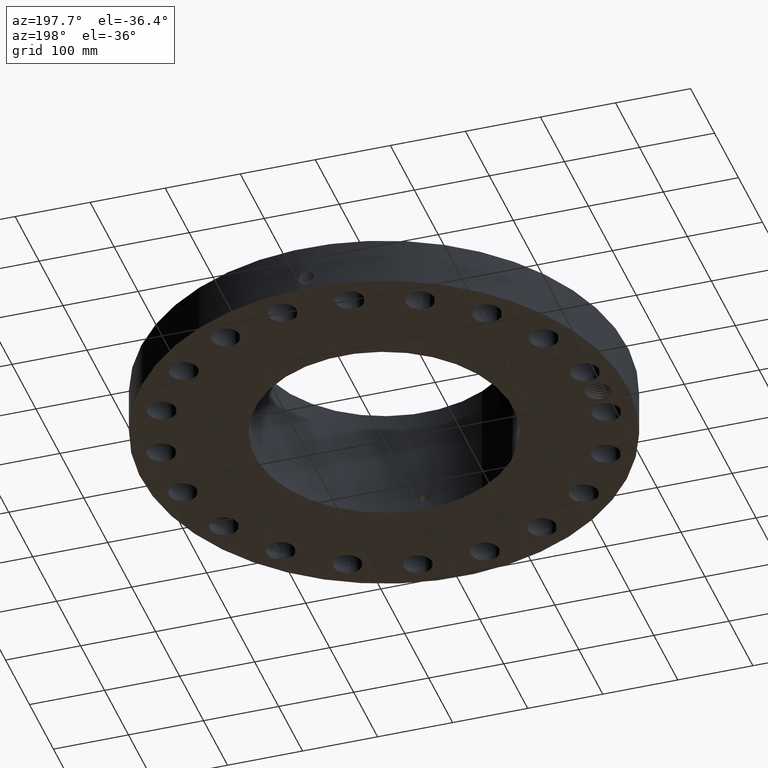
[diagram: clean part render]
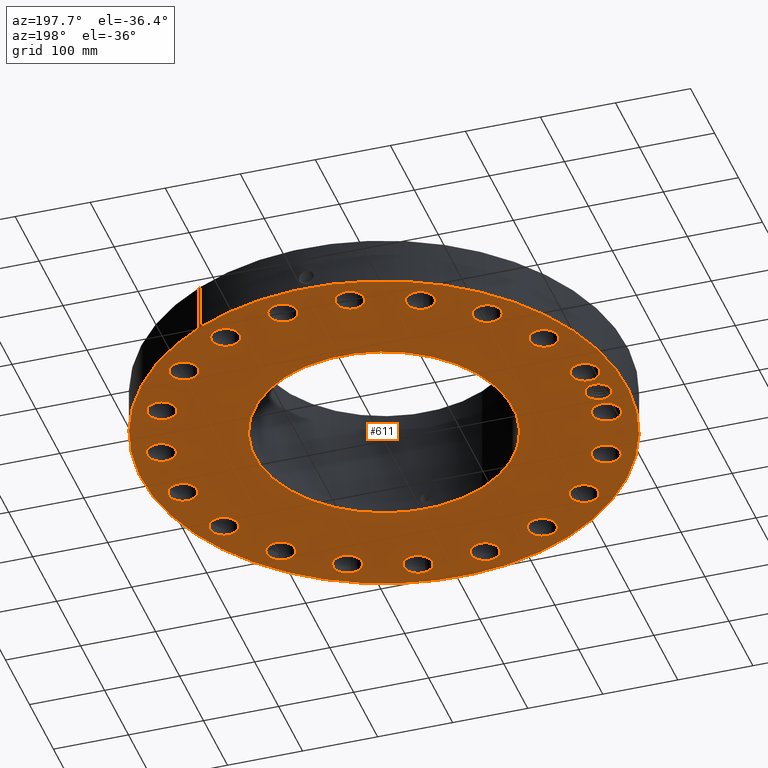
[diagram: same view with one face highlighted and labeled with its STEP entity id]
A machine part, auxiliary view. The second image highlights one B-rep face of the part: STEP entity #611.
In plain terms, the highlighted planar face has unit normal (0, 0, -1).
Its self-contained STEP definition (entity closure, byte-faithful):
#42=AXIS2_PLACEMENT_3D('Circle Axis2P3D',#40,#41,$) ;
#165=AXIS2_PLACEMENT_3D('Plane Axis2P3D',#162,#163,#164) ;
#169=AXIS2_PLACEMENT_3D('Circle Axis2P3D',#167,#168,$) ;
#178=AXIS2_PLACEMENT_3D('Circle Axis2P3D',#176,#177,$) ;
#187=AXIS2_PLACEMENT_3D('Circle Axis2P3D',#185,#186,$) ;
#235=AXIS2_PLACEMENT_3D('Circle Axis2P3D',#233,#234,$) ;
#244=AXIS2_PLACEMENT_3D('Circle Axis2P3D',#242,#243,$) ;
#253=AXIS2_PLACEMENT_3D('Circle Axis2P3D',#251,#252,$) ;
#262=AXIS2_PLACEMENT_3D('Circle Axis2P3D',#260,#261,$) ;
#271=AXIS2_PLACEMENT_3D('Circle Axis2P3D',#269,#270,$) ;
#280=AXIS2_PLACEMENT_3D('Circle Axis2P3D',#278,#279,$) ;
#289=AXIS2_PLACEMENT_3D('Circle Axis2P3D',#287,#288,$) ;
#298=AXIS2_PLACEMENT_3D('Circle Axis2P3D',#296,#297,$) ;
#307=AXIS2_PLACEMENT_3D('Circle Axis2P3D',#305,#306,$) ;
#316=AXIS2_PLACEMENT_3D('Circle Axis2P3D',#314,#315,$) ;
#325=AXIS2_PLACEMENT_3D('Circle Axis2P3D',#323,#324,$) ;
#334=AXIS2_PLACEMENT_3D('Circle Axis2P3D',#332,#333,$) ;
#343=AXIS2_PLACEMENT_3D('Circle Axis2P3D',#341,#342,$) ;
#352=AXIS2_PLACEMENT_3D('Circle Axis2P3D',#350,#351,$) ;
#361=AXIS2_PLACEMENT_3D('Circle Axis2P3D',#359,#360,$) ;
#370=AXIS2_PLACEMENT_3D('Circle Axis2P3D',#368,#369,$) ;
#379=AXIS2_PLACEMENT_3D('Circle Axis2P3D',#377,#378,$) ;
#388=AXIS2_PLACEMENT_3D('Circle Axis2P3D',#386,#387,$) ;
#397=AXIS2_PLACEMENT_3D('Circle Axis2P3D',#395,#396,$) ;
#406=AXIS2_PLACEMENT_3D('Circle Axis2P3D',#404,#405,$) ;
#415=AXIS2_PLACEMENT_3D('Circle Axis2P3D',#413,#414,$) ;
#424=AXIS2_PLACEMENT_3D('Circle Axis2P3D',#422,#423,$) ;
#433=AXIS2_PLACEMENT_3D('Circle Axis2P3D',#431,#432,$) ;
#442=AXIS2_PLACEMENT_3D('Circle Axis2P3D',#440,#441,$) ;
#451=AXIS2_PLACEMENT_3D('Circle Axis2P3D',#449,#450,$) ;
#460=AXIS2_PLACEMENT_3D('Circle Axis2P3D',#458,#459,$) ;
#469=AXIS2_PLACEMENT_3D('Circle Axis2P3D',#467,#468,$) ;
#478=AXIS2_PLACEMENT_3D('Circle Axis2P3D',#476,#477,$) ;
#487=AXIS2_PLACEMENT_3D('Circle Axis2P3D',#485,#486,$) ;
#496=AXIS2_PLACEMENT_3D('Circle Axis2P3D',#494,#495,$) ;
#505=AXIS2_PLACEMENT_3D('Circle Axis2P3D',#503,#504,$) ;
#514=AXIS2_PLACEMENT_3D('Circle Axis2P3D',#512,#513,$) ;
#523=AXIS2_PLACEMENT_3D('Circle Axis2P3D',#521,#522,$) ;
#532=AXIS2_PLACEMENT_3D('Circle Axis2P3D',#530,#531,$) ;
#541=AXIS2_PLACEMENT_3D('Circle Axis2P3D',#539,#540,$) ;
#550=AXIS2_PLACEMENT_3D('Circle Axis2P3D',#548,#549,$) ;
#559=AXIS2_PLACEMENT_3D('Circle Axis2P3D',#557,#558,$) ;
#568=AXIS2_PLACEMENT_3D('Circle Axis2P3D',#566,#567,$) ;
#577=AXIS2_PLACEMENT_3D('Circle Axis2P3D',#575,#576,$) ;
#586=AXIS2_PLACEMENT_3D('Circle Axis2P3D',#584,#585,$) ;
#595=AXIS2_PLACEMENT_3D('Circle Axis2P3D',#593,#594,$) ;
#604=AXIS2_PLACEMENT_3D('Circle Axis2P3D',#602,#603,$) ;
#40=CARTESIAN_POINT('Axis2P3D Location',(0.,0.,0.250000000001)) ;
#44=CARTESIAN_POINT('Vertex',(-6.11267561723,-11.1891776641,0.250000000001)) ;
#46=CARTESIAN_POINT('Vertex',(6.11267561723,11.1891776641,0.250000000001)) ;
#162=CARTESIAN_POINT('Axis2P3D Location',(0.,6.78100000003,0.250000000001)) ;
#167=CARTESIAN_POINT('Axis2P3D Location',(0.,0.,0.250000000001)) ;
#176=CARTESIAN_POINT('Axis2P3D Location',(-11.25,1.1189649382E-015,0.250000000001)) ;
#180=CARTESIAN_POINT('Vertex',(-11.8374318274,0.320915469904,0.250000000001)) ;
#182=CARTESIAN_POINT('Vertex',(-10.7473098011,0.442001645356,0.250000000001)) ;
#185=CARTESIAN_POINT('Axis2P3D Location',(-11.25,1.1189649382E-015,0.250000000001)) ;
#189=CARTESIAN_POINT('Vertex',(-10.745727607,-0.44019568855,0.250000000001)) ;
#193=CARTESIAN_POINT('Control Point',(-10.562547572,-2.07439722149E-006,0.250000000001)) ;
#194=CARTESIAN_POINT('Control Point',(-10.5649123368,-0.0645126418979,0.250000000001)) ;
#195=CARTESIAN_POINT('Control Point',(-10.5748495546,-0.12861527297,0.250000000001)) ;
#196=CARTESIAN_POINT('Control Point',(-10.5922883491,-0.191090685378,0.250000000001)) ;
#197=CARTESIAN_POINT('Control Point',(-10.6296657089,-0.281822187559,0.250000000001)) ;
#198=CARTESIAN_POINT('Control Point',(-10.6821488484,-0.363706894198,0.250000000001)) ;
#199=CARTESIAN_POINT('Control Point',(-10.7018002172,-0.390557436403,0.250000000001)) ;
#200=CARTESIAN_POINT('Control Point',(-10.7230326182,-0.416093542099,0.250000000001)) ;
#201=CARTESIAN_POINT('Control Point',(-10.745727607,-0.44019568855,0.250000000001)) ;
#202=CARTESIAN_POINT('Vertex',(-10.562547572,-2.07439722065E-006,0.250000000001)) ;
#206=CARTESIAN_POINT('Control Point',(-10.5625012214,0.00129588031295,0.250000000001)) ;
#207=CARTESIAN_POINT('Control Point',(-10.5625102463,0.00103627649472,0.250000000001)) ;
#208=CARTESIAN_POINT('Control Point',(-10.5625193938,0.000776679046875,0.250000000001)) ;
#209=CARTESIAN_POINT('Control Point',(-10.5625286639,0.000517087944345,0.250000000001)) ;
#210=CARTESIAN_POINT('Control Point',(-10.5625380567,0.000257503471332,0.250000000001)) ;
#211=CARTESIAN_POINT('Control Point',(-10.562547572,-2.07439722037E-006,0.250000000001)) ;
#212=CARTESIAN_POINT('Vertex',(-10.5625012214,0.00129588031295,0.250000000001)) ;
#216=CARTESIAN_POINT('Control Point',(-10.5625012214,0.00129588031295,0.250000000001)) ;
#217=CARTESIAN_POINT('Control Point',(-10.5649866199,0.065786283921,0.250000000001)) ;
#218=CARTESIAN_POINT('Control Point',(-10.5750394386,0.129854614966,0.250000000001)) ;
#219=CARTESIAN_POINT('Control Point',(-10.5925968418,0.192305932305,0.250000000001)) ;
#220=CARTESIAN_POINT('Control Point',(-10.630231751,0.283182608226,0.250000000001)) ;
#221=CARTESIAN_POINT('Control Point',(-10.6830567402,0.365186565569,0.250000000001)) ;
#222=CARTESIAN_POINT('Control Point',(-10.7029124323,0.392165092699,0.250000000001)) ;
#223=CARTESIAN_POINT('Control Point',(-10.7243703034,0.417811230116,0.250000000001)) ;
#224=CARTESIAN_POINT('Control Point',(-10.7473098011,0.442001645356,0.250000000001)) ;
#233=CARTESIAN_POINT('Axis2P3D Location',(11.1114938317,-1.75988773171,0.250000000001)) ;
#237=CARTESIAN_POINT('Vertex',(11.7696807532,-2.11945688566,0.250000000001)) ;
#239=CARTESIAN_POINT('Vertex',(10.4533069103,-1.40031857776,0.250000000001)) ;
#242=CARTESIAN_POINT('Axis2P3D Location',(11.1114938317,-1.75988773171,0.250000000001)) ;
#251=CARTESIAN_POINT('Axis2P3D Location',(0.,0.,0.250000000001)) ;
#255=CARTESIAN_POINT('Vertex',(3.25098457729,5.9508873522,0.250000000001)) ;
#257=CARTESIAN_POINT('Vertex',(-3.25098457729,-5.9508873522,0.250000000001)) ;
#260=CARTESIAN_POINT('Axis2P3D Location',(0.,0.,0.250000000001)) ;
#269=CARTESIAN_POINT('Axis2P3D Location',(10.0238233972,-5.10739312209,0.250000000001)) ;
#273=CARTESIAN_POINT('Vertex',(9.50896341583,-4.56203159097,0.250000000001)) ;
#275=CARTESIAN_POINT('Vertex',(10.5386833785,-5.65275465321,0.250000000001)) ;
#278=CARTESIAN_POINT('Axis2P3D Location',(10.0238233972,-5.10739312209,0.250000000001)) ;
#287=CARTESIAN_POINT('Axis2P3D Location',(7.95495128838,-7.95495128838,0.250000000001)) ;
#291=CARTESIAN_POINT('Vertex',(7.63381632935,-7.27718116652,0.250000000001)) ;
#293=CARTESIAN_POINT('Vertex',(8.27608624741,-8.63272141025,0.250000000001)) ;
#296=CARTESIAN_POINT('Axis2P3D Location',(7.95495128838,-7.95495128838,0.250000000001)) ;
#305=CARTESIAN_POINT('Axis2P3D Location',(5.10739312209,-10.0238233972,0.250000000001)) ;
#309=CARTESIAN_POINT('Vertex',(5.01141811263,-9.27998954638,0.250000000001)) ;
#311=CARTESIAN_POINT('Vertex',(5.20336813155,-10.7676572479,0.250000000001)) ;
#314=CARTESIAN_POINT('Axis2P3D Location',(5.10739312209,-10.0238233972,0.250000000001)) ;
#323=CARTESIAN_POINT('Axis2P3D Location',(1.75988773171,-11.1114938317,0.250000000001)) ;
#327=CARTESIAN_POINT('Vertex',(1.89846737444,-10.374407892,0.250000000001)) ;
#329=CARTESIAN_POINT('Vertex',(1.62130808898,-11.8485797715,0.250000000001)) ;
#332=CARTESIAN_POINT('Axis2P3D Location',(1.75988773171,-11.1114938317,0.250000000001)) ;
#341=CARTESIAN_POINT('Axis2P3D Location',(-1.75988773171,-11.1114938317,0.250000000001)) ;
#345=CARTESIAN_POINT('Vertex',(-1.40031857776,-10.4533069103,0.250000000001)) ;
#347=CARTESIAN_POINT('Vertex',(-2.11945688566,-11.7696807532,0.250000000001)) ;
#350=CARTESIAN_POINT('Axis2P3D Location',(-1.75988773171,-11.1114938317,0.250000000001)) ;
#359=CARTESIAN_POINT('Axis2P3D Location',(-5.10739312209,-10.0238233972,0.250000000001)) ;
#363=CARTESIAN_POINT('Vertex',(-4.56203159097,-9.50896341583,0.250000000001)) ;
#365=CARTESIAN_POINT('Vertex',(-5.65275465321,-10.5386833785,0.250000000001)) ;
#368=CARTESIAN_POINT('Axis2P3D Location',(-5.10739312209,-10.0238233972,0.250000000001)) ;
#377=CARTESIAN_POINT('Axis2P3D Location',(-7.95495128838,-7.95495128838,0.250000000001)) ;
#381=CARTESIAN_POINT('Vertex',(-7.27718116652,-7.63381632935,0.250000000001)) ;
#383=CARTESIAN_POINT('Vertex',(-8.63272141025,-8.27608624741,0.250000000001)) ;
#386=CARTESIAN_POINT('Axis2P3D Location',(-7.95495128838,-7.95495128838,0.250000000001)) ;
#395=CARTESIAN_POINT('Axis2P3D Location',(-10.0238233972,-5.10739312209,0.250000000001)) ;
#399=CARTESIAN_POINT('Vertex',(-9.27998954638,-5.01141811263,0.250000000001)) ;
#401=CARTESIAN_POINT('Vertex',(-10.7676572479,-5.20336813155,0.250000000001)) ;
#404=CARTESIAN_POINT('Axis2P3D Location',(-10.0238233972,-5.10739312209,0.250000000001)) ;
#413=CARTESIAN_POINT('Axis2P3D Location',(-11.1114938317,-1.75988773171,0.250000000001)) ;
#417=CARTESIAN_POINT('Vertex',(-10.374407892,-1.89846737444,0.250000000001)) ;
#419=CARTESIAN_POINT('Vertex',(-11.8485797715,-1.62130808898,0.250000000001)) ;
#422=CARTESIAN_POINT('Axis2P3D Location',(-11.1114938317,-1.75988773171,0.250000000001)) ;
#431=CARTESIAN_POINT('Axis2P3D Location',(-11.1114938317,1.75988773171,0.250000000001)) ;
#435=CARTESIAN_POINT('Vertex',(-10.4533069103,1.40031857776,0.250000000001)) ;
#437=CARTESIAN_POINT('Vertex',(-11.7696807532,2.11945688566,0.250000000001)) ;
#440=CARTESIAN_POINT('Axis2P3D Location',(-11.1114938317,1.75988773171,0.250000000001)) ;
#449=CARTESIAN_POINT('Axis2P3D Location',(-10.0238233972,5.10739312209,0.250000000001)) ;
#453=CARTESIAN_POINT('Vertex',(-9.50896341583,4.56203159097,0.250000000001)) ;
#455=CARTESIAN_POINT('Vertex',(-10.5386833785,5.65275465321,0.250000000001)) ;
#458=CARTESIAN_POINT('Axis2P3D Location',(-10.0238233972,5.10739312209,0.250000000001)) ;
#467=CARTESIAN_POINT('Axis2P3D Location',(-7.95495128838,7.95495128838,0.250000000001)) ;
#471=CARTESIAN_POINT('Vertex',(-7.63381632935,7.27718116652,0.250000000001)) ;
#473=CARTESIAN_POINT('Vertex',(-8.27608624741,8.63272141025,0.250000000001)) ;
#476=CARTESIAN_POINT('Axis2P3D Location',(-7.95495128838,7.95495128838,0.250000000001)) ;
#485=CARTESIAN_POINT('Axis2P3D Location',(-5.10739312209,10.0238233972,0.250000000001)) ;
#489=CARTESIAN_POINT('Vertex',(-5.01141811263,9.27998954638,0.250000000001)) ;
#491=CARTESIAN_POINT('Vertex',(-5.20336813155,10.7676572479,0.250000000001)) ;
#494=CARTESIAN_POINT('Axis2P3D Location',(-5.10739312209,10.0238233972,0.250000000001)) ;
#503=CARTESIAN_POINT('Axis2P3D Location',(-1.75988773171,11.1114938317,0.250000000001)) ;
#507=CARTESIAN_POINT('Vertex',(-1.89846737444,10.374407892,0.250000000001)) ;
#509=CARTESIAN_POINT('Vertex',(-1.62130808898,11.8485797715,0.250000000001)) ;
#512=CARTESIAN_POINT('Axis2P3D Location',(-1.75988773171,11.1114938317,0.250000000001)) ;
#521=CARTESIAN_POINT('Axis2P3D Location',(1.75988773171,11.1114938317,0.250000000001)) ;
#525=CARTESIAN_POINT('Vertex',(1.40031857776,10.4533069103,0.250000000001)) ;
#527=CARTESIAN_POINT('Vertex',(2.11945688566,11.7696807532,0.250000000001)) ;
#530=CARTESIAN_POINT('Axis2P3D Location',(1.75988773171,11.1114938317,0.250000000001)) ;
#539=CARTESIAN_POINT('Axis2P3D Location',(5.10739312209,10.0238233972,0.250000000001)) ;
#543=CARTESIAN_POINT('Vertex',(4.56203159097,9.50896341583,0.250000000001)) ;
#545=CARTESIAN_POINT('Vertex',(5.65275465321,10.5386833785,0.250000000001)) ;
#548=CARTESIAN_POINT('Axis2P3D Location',(5.10739312209,10.0238233972,0.250000000001)) ;
#557=CARTESIAN_POINT('Axis2P3D Location',(7.95495128838,7.95495128838,0.250000000001)) ;
#561=CARTESIAN_POINT('Vertex',(7.27718116652,7.63381632935,0.250000000001)) ;
#563=CARTESIAN_POINT('Vertex',(8.63272141025,8.27608624741,0.250000000001)) ;
#566=CARTESIAN_POINT('Axis2P3D Location',(7.95495128838,7.95495128838,0.250000000001)) ;
#575=CARTESIAN_POINT('Axis2P3D Location',(10.0238233972,5.10739312209,0.250000000001)) ;
#579=CARTESIAN_POINT('Vertex',(9.27998954638,5.01141811263,0.250000000001)) ;
#581=CARTESIAN_POINT('Vertex',(10.7676572479,5.20336813155,0.250000000001)) ;
#584=CARTESIAN_POINT('Axis2P3D Location',(10.0238233972,5.10739312209,0.250000000001)) ;
#593=CARTESIAN_POINT('Axis2P3D Location',(11.1114938317,1.75988773171,0.250000000001)) ;
#597=CARTESIAN_POINT('Vertex',(10.374407892,1.89846737444,0.250000000001)) ;
#599=CARTESIAN_POINT('Vertex',(11.8485797715,1.62130808898,0.250000000001)) ;
#602=CARTESIAN_POINT('Axis2P3D Location',(11.1114938317,1.75988773171,0.250000000001)) ;
#41=DIRECTION('Axis2P3D Direction',(0.,0.,-0.0393700787402)) ;
#163=DIRECTION('Axis2P3D Direction',(0.,0.,-0.0393700787402)) ;
#164=DIRECTION('Axis2P3D XDirection',(0.0393700787402,0.,0.)) ;
#168=DIRECTION('Axis2P3D Direction',(0.,0.,-0.0393700787402)) ;
#177=DIRECTION('Axis2P3D Direction',(0.,0.,-0.0393700787402)) ;
#186=DIRECTION('Axis2P3D Direction',(0.,0.,-0.0393700787402)) ;
#234=DIRECTION('Axis2P3D Direction',(0.,0.,-0.0393700787402)) ;
#243=DIRECTION('Axis2P3D Direction',(0.,0.,-0.0393700787402)) ;
#252=DIRECTION('Axis2P3D Direction',(0.,0.,-0.0393700787402)) ;
#261=DIRECTION('Axis2P3D Direction',(0.,0.,-0.0393700787402)) ;
#270=DIRECTION('Axis2P3D Direction',(0.,0.,-0.0393700787402)) ;
#279=DIRECTION('Axis2P3D Direction',(0.,0.,-0.0393700787402)) ;
#288=DIRECTION('Axis2P3D Direction',(0.,0.,-0.0393700787402)) ;
#297=DIRECTION('Axis2P3D Direction',(0.,0.,-0.0393700787402)) ;
#306=DIRECTION('Axis2P3D Direction',(0.,0.,-0.0393700787402)) ;
#315=DIRECTION('Axis2P3D Direction',(0.,0.,-0.0393700787402)) ;
#324=DIRECTION('Axis2P3D Direction',(0.,0.,-0.0393700787402)) ;
#333=DIRECTION('Axis2P3D Direction',(0.,0.,-0.0393700787402)) ;
#342=DIRECTION('Axis2P3D Direction',(0.,0.,-0.0393700787402)) ;
#351=DIRECTION('Axis2P3D Direction',(0.,0.,-0.0393700787402)) ;
#360=DIRECTION('Axis2P3D Direction',(0.,0.,-0.0393700787402)) ;
#369=DIRECTION('Axis2P3D Direction',(0.,0.,-0.0393700787402)) ;
#378=DIRECTION('Axis2P3D Direction',(0.,0.,-0.0393700787402)) ;
#387=DIRECTION('Axis2P3D Direction',(0.,0.,-0.0393700787402)) ;
#396=DIRECTION('Axis2P3D Direction',(0.,0.,-0.0393700787402)) ;
#405=DIRECTION('Axis2P3D Direction',(0.,0.,-0.0393700787402)) ;
#414=DIRECTION('Axis2P3D Direction',(0.,0.,-0.0393700787402)) ;
#423=DIRECTION('Axis2P3D Direction',(0.,0.,-0.0393700787402)) ;
#432=DIRECTION('Axis2P3D Direction',(0.,0.,-0.0393700787402)) ;
#441=DIRECTION('Axis2P3D Direction',(0.,0.,-0.0393700787402)) ;
#450=DIRECTION('Axis2P3D Direction',(0.,0.,-0.0393700787402)) ;
#459=DIRECTION('Axis2P3D Direction',(0.,0.,-0.0393700787402)) ;
#468=DIRECTION('Axis2P3D Direction',(0.,0.,-0.0393700787402)) ;
#477=DIRECTION('Axis2P3D Direction',(0.,0.,-0.0393700787402)) ;
#486=DIRECTION('Axis2P3D Direction',(0.,0.,-0.0393700787402)) ;
#495=DIRECTION('Axis2P3D Direction',(0.,0.,-0.0393700787402)) ;
#504=DIRECTION('Axis2P3D Direction',(0.,0.,-0.0393700787402)) ;
#513=DIRECTION('Axis2P3D Direction',(0.,0.,-0.0393700787402)) ;
#522=DIRECTION('Axis2P3D Direction',(0.,0.,-0.0393700787402)) ;
#531=DIRECTION('Axis2P3D Direction',(0.,0.,-0.0393700787402)) ;
#540=DIRECTION('Axis2P3D Direction',(0.,0.,-0.0393700787402)) ;
#549=DIRECTION('Axis2P3D Direction',(0.,0.,-0.0393700787402)) ;
#558=DIRECTION('Axis2P3D Direction',(0.,0.,-0.0393700787402)) ;
#567=DIRECTION('Axis2P3D Direction',(0.,0.,-0.0393700787402)) ;
#576=DIRECTION('Axis2P3D Direction',(0.,0.,-0.0393700787402)) ;
#585=DIRECTION('Axis2P3D Direction',(0.,0.,-0.0393700787402)) ;
#594=DIRECTION('Axis2P3D Direction',(0.,0.,-0.0393700787402)) ;
#603=DIRECTION('Axis2P3D Direction',(0.,0.,-0.0393700787402)) ;
#173=ORIENTED_EDGE('',*,*,#48,.T.) ;
#174=ORIENTED_EDGE('',*,*,#171,.T.) ;
#227=ORIENTED_EDGE('',*,*,#184,.F.) ;
#228=ORIENTED_EDGE('',*,*,#191,.F.) ;
#229=ORIENTED_EDGE('',*,*,#204,.F.) ;
#230=ORIENTED_EDGE('',*,*,#214,.F.) ;
#231=ORIENTED_EDGE('',*,*,#225,.T.) ;
#248=ORIENTED_EDGE('',*,*,#241,.F.) ;
#249=ORIENTED_EDGE('',*,*,#246,.F.) ;
#266=ORIENTED_EDGE('',*,*,#259,.F.) ;
#267=ORIENTED_EDGE('',*,*,#264,.F.) ;
#284=ORIENTED_EDGE('',*,*,#277,.F.) ;
#285=ORIENTED_EDGE('',*,*,#282,.F.) ;
#302=ORIENTED_EDGE('',*,*,#295,.F.) ;
#303=ORIENTED_EDGE('',*,*,#300,.F.) ;
#320=ORIENTED_EDGE('',*,*,#313,.F.) ;
#321=ORIENTED_EDGE('',*,*,#318,.F.) ;
#338=ORIENTED_EDGE('',*,*,#331,.F.) ;
#339=ORIENTED_EDGE('',*,*,#336,.F.) ;
#356=ORIENTED_EDGE('',*,*,#349,.F.) ;
#357=ORIENTED_EDGE('',*,*,#354,.F.) ;
#374=ORIENTED_EDGE('',*,*,#367,.F.) ;
#375=ORIENTED_EDGE('',*,*,#372,.F.) ;
#392=ORIENTED_EDGE('',*,*,#385,.F.) ;
#393=ORIENTED_EDGE('',*,*,#390,.F.) ;
#410=ORIENTED_EDGE('',*,*,#403,.F.) ;
#411=ORIENTED_EDGE('',*,*,#408,.F.) ;
#428=ORIENTED_EDGE('',*,*,#421,.F.) ;
#429=ORIENTED_EDGE('',*,*,#426,.F.) ;
#446=ORIENTED_EDGE('',*,*,#439,.F.) ;
#447=ORIENTED_EDGE('',*,*,#444,.F.) ;
#464=ORIENTED_EDGE('',*,*,#457,.F.) ;
#465=ORIENTED_EDGE('',*,*,#462,.F.) ;
#482=ORIENTED_EDGE('',*,*,#475,.F.) ;
#483=ORIENTED_EDGE('',*,*,#480,.F.) ;
#500=ORIENTED_EDGE('',*,*,#493,.F.) ;
#501=ORIENTED_EDGE('',*,*,#498,.F.) ;
#518=ORIENTED_EDGE('',*,*,#511,.F.) ;
#519=ORIENTED_EDGE('',*,*,#516,.F.) ;
#536=ORIENTED_EDGE('',*,*,#529,.F.) ;
#537=ORIENTED_EDGE('',*,*,#534,.F.) ;
#554=ORIENTED_EDGE('',*,*,#547,.F.) ;
#555=ORIENTED_EDGE('',*,*,#552,.F.) ;
#572=ORIENTED_EDGE('',*,*,#565,.F.) ;
#573=ORIENTED_EDGE('',*,*,#570,.F.) ;
#590=ORIENTED_EDGE('',*,*,#583,.F.) ;
#591=ORIENTED_EDGE('',*,*,#588,.F.) ;
#608=ORIENTED_EDGE('',*,*,#601,.F.) ;
#609=ORIENTED_EDGE('',*,*,#606,.F.) ;
#232=FACE_BOUND('',#226,.T.) ;
#250=FACE_BOUND('',#247,.T.) ;
#268=FACE_BOUND('',#265,.T.) ;
#286=FACE_BOUND('',#283,.T.) ;
#304=FACE_BOUND('',#301,.T.) ;
#322=FACE_BOUND('',#319,.T.) ;
#340=FACE_BOUND('',#337,.T.) ;
#358=FACE_BOUND('',#355,.T.) ;
#376=FACE_BOUND('',#373,.T.) ;
#394=FACE_BOUND('',#391,.T.) ;
#412=FACE_BOUND('',#409,.T.) ;
#430=FACE_BOUND('',#427,.T.) ;
#448=FACE_BOUND('',#445,.T.) ;
#466=FACE_BOUND('',#463,.T.) ;
#484=FACE_BOUND('',#481,.T.) ;
#502=FACE_BOUND('',#499,.T.) ;
#520=FACE_BOUND('',#517,.T.) ;
#538=FACE_BOUND('',#535,.T.) ;
#556=FACE_BOUND('',#553,.T.) ;
#574=FACE_BOUND('',#571,.T.) ;
#592=FACE_BOUND('',#589,.T.) ;
#610=FACE_BOUND('',#607,.T.) ;
#611=ADVANCED_FACE('PartBody',(#175,#232,#250,#268,#286,#304,#322,#340,#358,#376,#394,#412,#430,#448,#466,#484,#502,#520,#538,#556,#574,#592,#610),#166,.T.) ;
#192=B_SPLINE_CURVE_WITH_KNOTS('',5,(#193,#194,#195,#196,#197,#198,#199,#200,#201),.UNSPECIFIED.,.F.,.U.,(6,3,6),(0.,11.2766312491,17.1462325071),.UNSPECIFIED.) ;
#205=B_SPLINE_CURVE_WITH_KNOTS('',5,(#206,#207,#208,#209,#210,#211),.UNSPECIFIED.,.F.,.U.,(6,6),(0.,0.0453749520051),.UNSPECIFIED.) ;
#215=B_SPLINE_CURVE_WITH_KNOTS('',5,(#216,#217,#218,#219,#220,#221,#222,#223,#224),.UNSPECIFIED.,.F.,.U.,(6,3,6),(0.,11.2735372536,17.1737100123),.UNSPECIFIED.) ;
#43=CIRCLE('generated circle',#42,12.7500000001) ;
#170=CIRCLE('generated circle',#169,12.7500000001) ;
#179=CIRCLE('generated circle',#178,0.669375000003) ;
#188=CIRCLE('generated circle',#187,0.669375000003) ;
#236=CIRCLE('generated circle',#235,0.750000000003) ;
#245=CIRCLE('generated circle',#244,0.750000000003) ;
#254=CIRCLE('generated circle',#253,6.78100000003) ;
#263=CIRCLE('generated circle',#262,6.78100000003) ;
#272=CIRCLE('generated circle',#271,0.750000000003) ;
#281=CIRCLE('generated circle',#280,0.750000000003) ;
#290=CIRCLE('generated circle',#289,0.750000000003) ;
#299=CIRCLE('generated circle',#298,0.750000000003) ;
#308=CIRCLE('generated circle',#307,0.750000000003) ;
#317=CIRCLE('generated circle',#316,0.750000000003) ;
#326=CIRCLE('generated circle',#325,0.750000000003) ;
#335=CIRCLE('generated circle',#334,0.750000000003) ;
#344=CIRCLE('generated circle',#343,0.750000000003) ;
#353=CIRCLE('generated circle',#352,0.750000000003) ;
#362=CIRCLE('generated circle',#361,0.750000000003) ;
#371=CIRCLE('generated circle',#370,0.750000000003) ;
#380=CIRCLE('generated circle',#379,0.750000000003) ;
#389=CIRCLE('generated circle',#388,0.750000000003) ;
#398=CIRCLE('generated circle',#397,0.750000000003) ;
#407=CIRCLE('generated circle',#406,0.750000000003) ;
#416=CIRCLE('generated circle',#415,0.750000000003) ;
#425=CIRCLE('generated circle',#424,0.750000000003) ;
#434=CIRCLE('generated circle',#433,0.750000000003) ;
#443=CIRCLE('generated circle',#442,0.750000000003) ;
#452=CIRCLE('generated circle',#451,0.750000000003) ;
#461=CIRCLE('generated circle',#460,0.750000000003) ;
#470=CIRCLE('generated circle',#469,0.750000000003) ;
#479=CIRCLE('generated circle',#478,0.750000000003) ;
#488=CIRCLE('generated circle',#487,0.750000000003) ;
#497=CIRCLE('generated circle',#496,0.750000000003) ;
#506=CIRCLE('generated circle',#505,0.750000000003) ;
#515=CIRCLE('generated circle',#514,0.750000000003) ;
#524=CIRCLE('generated circle',#523,0.750000000003) ;
#533=CIRCLE('generated circle',#532,0.750000000003) ;
#542=CIRCLE('generated circle',#541,0.750000000003) ;
#551=CIRCLE('generated circle',#550,0.750000000003) ;
#560=CIRCLE('generated circle',#559,0.750000000003) ;
#569=CIRCLE('generated circle',#568,0.750000000003) ;
#578=CIRCLE('generated circle',#577,0.750000000003) ;
#587=CIRCLE('generated circle',#586,0.750000000003) ;
#596=CIRCLE('generated circle',#595,0.750000000003) ;
#605=CIRCLE('generated circle',#604,0.750000000003) ;
#48=EDGE_CURVE('',#45,#47,#43,.T.) ;
#171=EDGE_CURVE('',#47,#45,#170,.T.) ;
#184=EDGE_CURVE('',#181,#183,#179,.T.) ;
#191=EDGE_CURVE('',#190,#181,#188,.T.) ;
#204=EDGE_CURVE('',#203,#190,#192,.T.) ;
#214=EDGE_CURVE('',#213,#203,#205,.T.) ;
#225=EDGE_CURVE('',#213,#183,#215,.T.) ;
#241=EDGE_CURVE('',#238,#240,#236,.T.) ;
#246=EDGE_CURVE('',#240,#238,#245,.T.) ;
#259=EDGE_CURVE('',#256,#258,#254,.T.) ;
#264=EDGE_CURVE('',#258,#256,#263,.T.) ;
#277=EDGE_CURVE('',#274,#276,#272,.T.) ;
#282=EDGE_CURVE('',#276,#274,#281,.T.) ;
#295=EDGE_CURVE('',#292,#294,#290,.T.) ;
#300=EDGE_CURVE('',#294,#292,#299,.T.) ;
#313=EDGE_CURVE('',#310,#312,#308,.T.) ;
#318=EDGE_CURVE('',#312,#310,#317,.T.) ;
#331=EDGE_CURVE('',#328,#330,#326,.T.) ;
#336=EDGE_CURVE('',#330,#328,#335,.T.) ;
#349=EDGE_CURVE('',#346,#348,#344,.T.) ;
#354=EDGE_CURVE('',#348,#346,#353,.T.) ;
#367=EDGE_CURVE('',#364,#366,#362,.T.) ;
#372=EDGE_CURVE('',#366,#364,#371,.T.) ;
#385=EDGE_CURVE('',#382,#384,#380,.T.) ;
#390=EDGE_CURVE('',#384,#382,#389,.T.) ;
#403=EDGE_CURVE('',#400,#402,#398,.T.) ;
#408=EDGE_CURVE('',#402,#400,#407,.T.) ;
#421=EDGE_CURVE('',#418,#420,#416,.T.) ;
#426=EDGE_CURVE('',#420,#418,#425,.T.) ;
#439=EDGE_CURVE('',#436,#438,#434,.T.) ;
#444=EDGE_CURVE('',#438,#436,#443,.T.) ;
#457=EDGE_CURVE('',#454,#456,#452,.T.) ;
#462=EDGE_CURVE('',#456,#454,#461,.T.) ;
#475=EDGE_CURVE('',#472,#474,#470,.T.) ;
#480=EDGE_CURVE('',#474,#472,#479,.T.) ;
#493=EDGE_CURVE('',#490,#492,#488,.T.) ;
#498=EDGE_CURVE('',#492,#490,#497,.T.) ;
#511=EDGE_CURVE('',#508,#510,#506,.T.) ;
#516=EDGE_CURVE('',#510,#508,#515,.T.) ;
#529=EDGE_CURVE('',#526,#528,#524,.T.) ;
#534=EDGE_CURVE('',#528,#526,#533,.T.) ;
#547=EDGE_CURVE('',#544,#546,#542,.T.) ;
#552=EDGE_CURVE('',#546,#544,#551,.T.) ;
#565=EDGE_CURVE('',#562,#564,#560,.T.) ;
#570=EDGE_CURVE('',#564,#562,#569,.T.) ;
#583=EDGE_CURVE('',#580,#582,#578,.T.) ;
#588=EDGE_CURVE('',#582,#580,#587,.T.) ;
#601=EDGE_CURVE('',#598,#600,#596,.T.) ;
#606=EDGE_CURVE('',#600,#598,#605,.T.) ;
#172=EDGE_LOOP('',(#173,#174)) ;
#226=EDGE_LOOP('',(#227,#228,#229,#230,#231)) ;
#247=EDGE_LOOP('',(#248,#249)) ;
#265=EDGE_LOOP('',(#266,#267)) ;
#283=EDGE_LOOP('',(#284,#285)) ;
#301=EDGE_LOOP('',(#302,#303)) ;
#319=EDGE_LOOP('',(#320,#321)) ;
#337=EDGE_LOOP('',(#338,#339)) ;
#355=EDGE_LOOP('',(#356,#357)) ;
#373=EDGE_LOOP('',(#374,#375)) ;
#391=EDGE_LOOP('',(#392,#393)) ;
#409=EDGE_LOOP('',(#410,#411)) ;
#427=EDGE_LOOP('',(#428,#429)) ;
#445=EDGE_LOOP('',(#446,#447)) ;
#463=EDGE_LOOP('',(#464,#465)) ;
#481=EDGE_LOOP('',(#482,#483)) ;
#499=EDGE_LOOP('',(#500,#501)) ;
#517=EDGE_LOOP('',(#518,#519)) ;
#535=EDGE_LOOP('',(#536,#537)) ;
#553=EDGE_LOOP('',(#554,#555)) ;
#571=EDGE_LOOP('',(#572,#573)) ;
#589=EDGE_LOOP('',(#590,#591)) ;
#607=EDGE_LOOP('',(#608,#609)) ;
#175=FACE_OUTER_BOUND('',#172,.T.) ;
#166=PLANE('',#165) ;
#45=VERTEX_POINT('',#44) ;
#47=VERTEX_POINT('',#46) ;
#181=VERTEX_POINT('',#180) ;
#183=VERTEX_POINT('',#182) ;
#190=VERTEX_POINT('',#189) ;
#203=VERTEX_POINT('',#202) ;
#213=VERTEX_POINT('',#212) ;
#238=VERTEX_POINT('',#237) ;
#240=VERTEX_POINT('',#239) ;
#256=VERTEX_POINT('',#255) ;
#258=VERTEX_POINT('',#257) ;
#274=VERTEX_POINT('',#273) ;
#276=VERTEX_POINT('',#275) ;
#292=VERTEX_POINT('',#291) ;
#294=VERTEX_POINT('',#293) ;
#310=VERTEX_POINT('',#309) ;
#312=VERTEX_POINT('',#311) ;
#328=VERTEX_POINT('',#327) ;
#330=VERTEX_POINT('',#329) ;
#346=VERTEX_POINT('',#345) ;
#348=VERTEX_POINT('',#347) ;
#364=VERTEX_POINT('',#363) ;
#366=VERTEX_POINT('',#365) ;
#382=VERTEX_POINT('',#381) ;
#384=VERTEX_POINT('',#383) ;
#400=VERTEX_POINT('',#399) ;
#402=VERTEX_POINT('',#401) ;
#418=VERTEX_POINT('',#417) ;
#420=VERTEX_POINT('',#419) ;
#436=VERTEX_POINT('',#435) ;
#438=VERTEX_POINT('',#437) ;
#454=VERTEX_POINT('',#453) ;
#456=VERTEX_POINT('',#455) ;
#472=VERTEX_POINT('',#471) ;
#474=VERTEX_POINT('',#473) ;
#490=VERTEX_POINT('',#489) ;
#492=VERTEX_POINT('',#491) ;
#508=VERTEX_POINT('',#507) ;
#510=VERTEX_POINT('',#509) ;
#526=VERTEX_POINT('',#525) ;
#528=VERTEX_POINT('',#527) ;
#544=VERTEX_POINT('',#543) ;
#546=VERTEX_POINT('',#545) ;
#562=VERTEX_POINT('',#561) ;
#564=VERTEX_POINT('',#563) ;
#580=VERTEX_POINT('',#579) ;
#582=VERTEX_POINT('',#581) ;
#598=VERTEX_POINT('',#597) ;
#600=VERTEX_POINT('',#599) ;